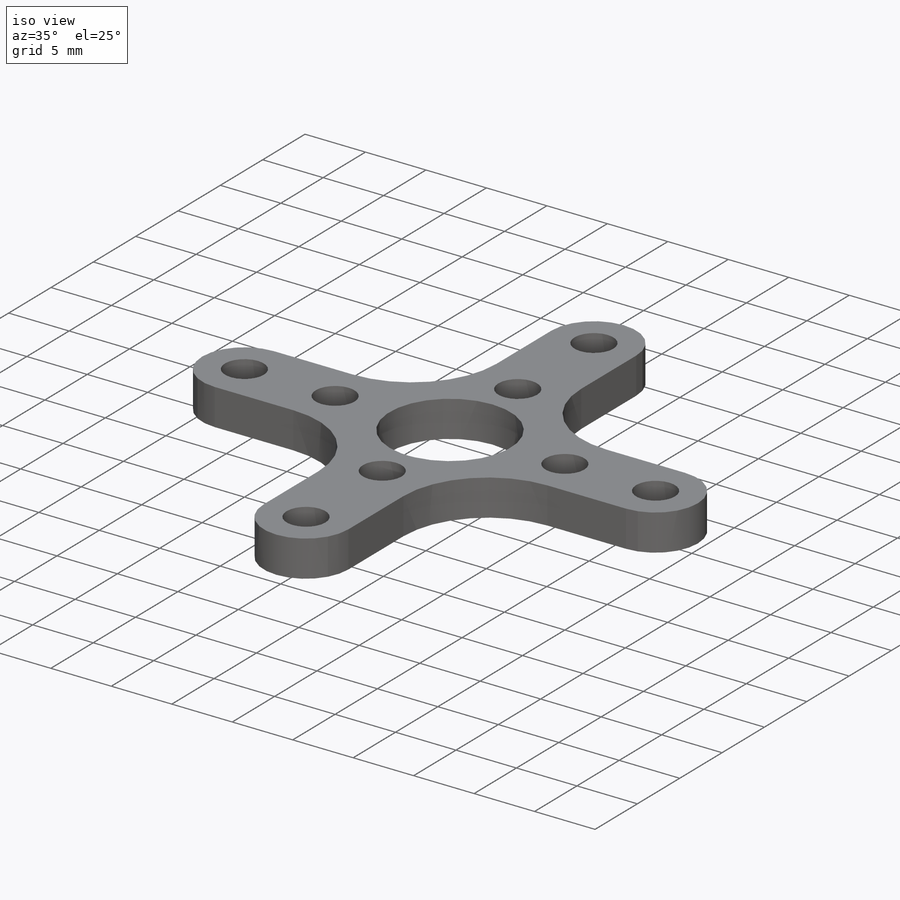
[diagram: iso view]
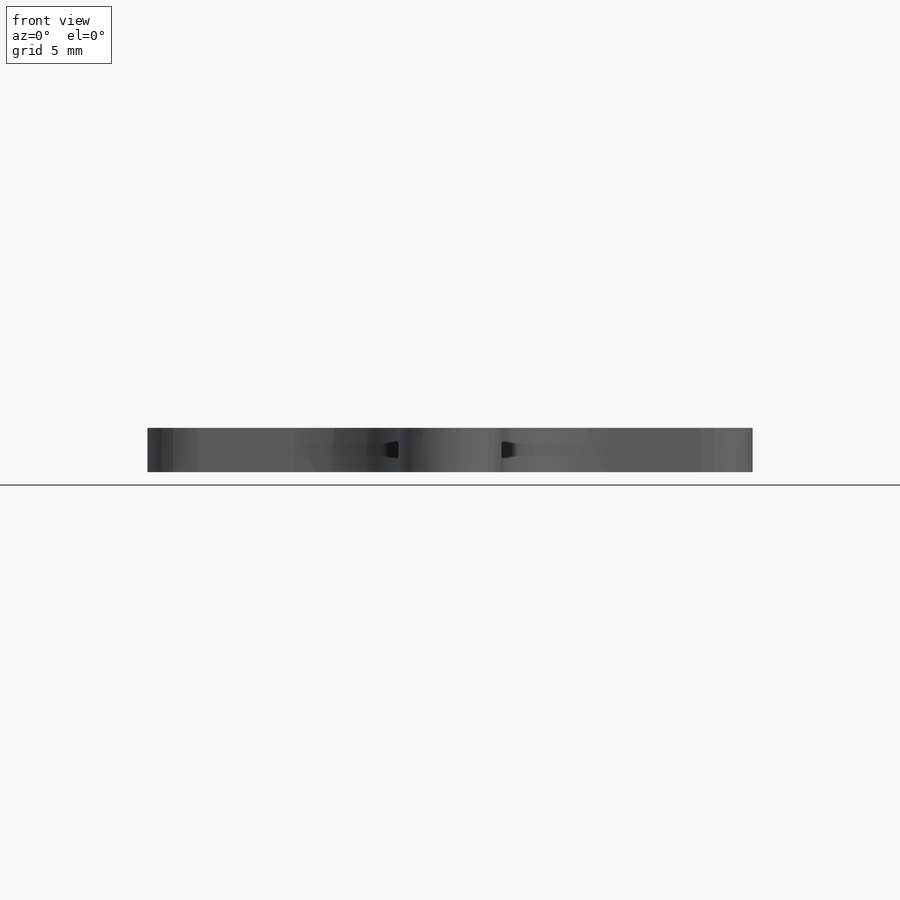
[diagram: front view]
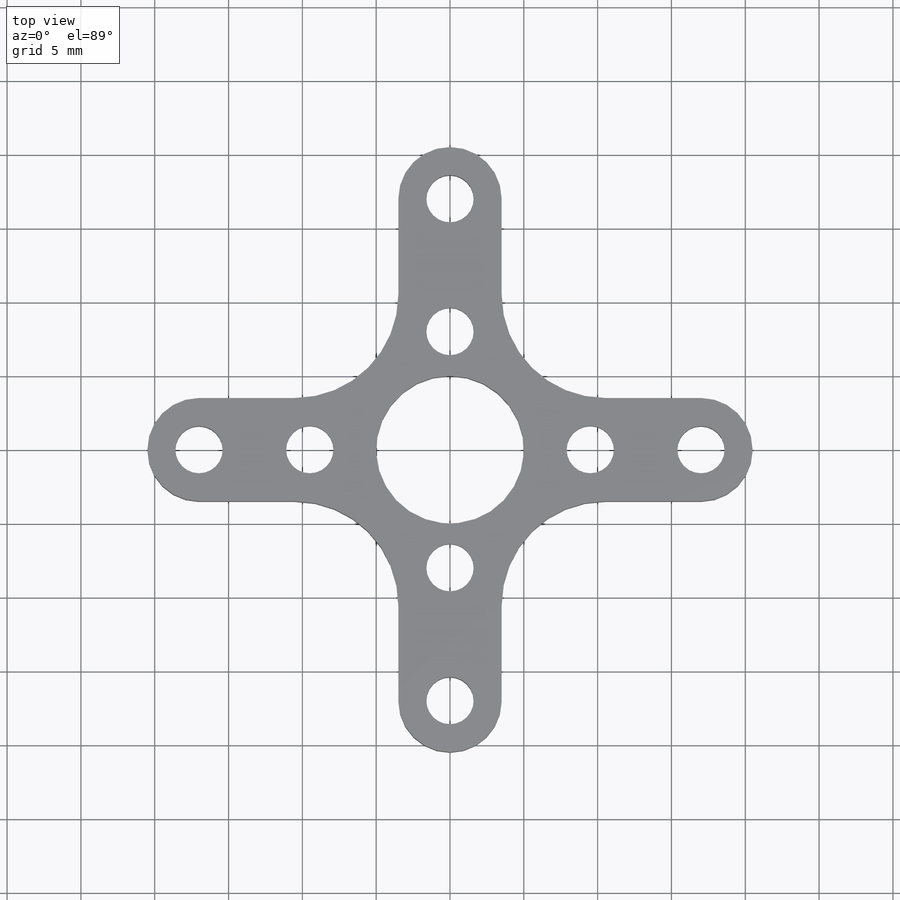
[diagram: top view]
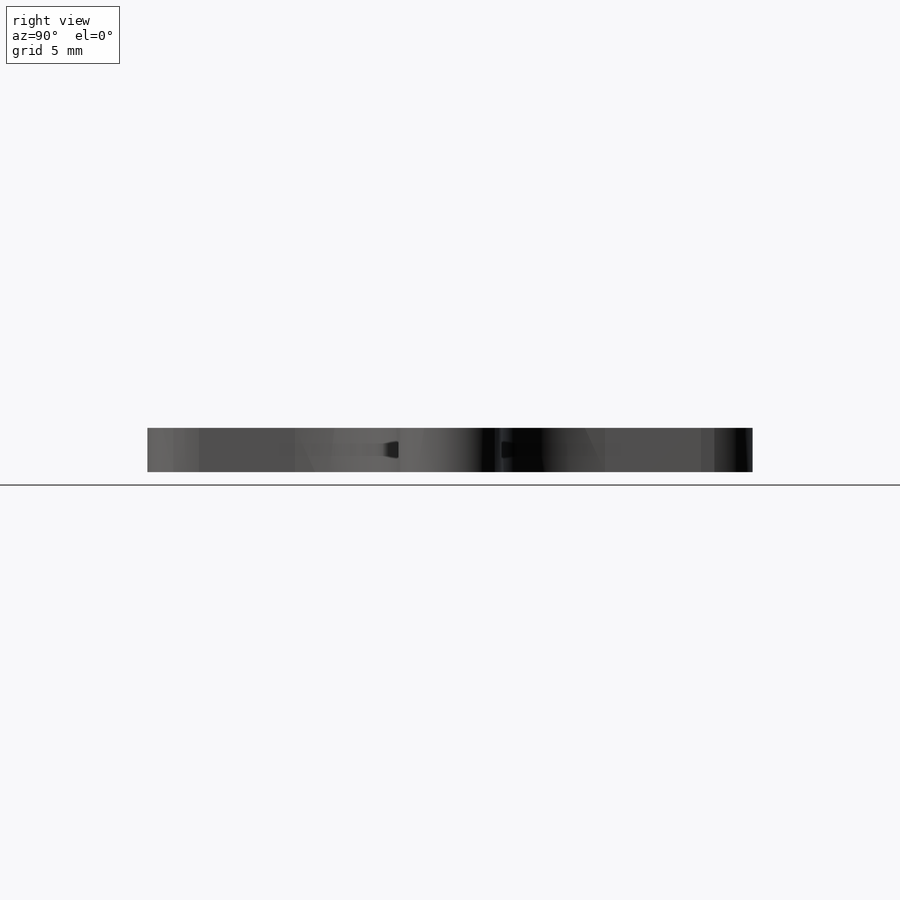
[diagram: right view]
SOLIDWORKS PART (.sldprt)
format: sldprt  version: not decoded by parser v0  size: 269,824 bytes
history: native  units: mm
features: sketch x8, hole x3, material x1, extrude x1, pattern_circular x1 (+12 scaffold rows collapsed)
feature tree (26):
  scaffold x12  (default folders/planes/origin — collapsed)
  material  "Material <not specified>"
  sketch  "Sketch1"  dims[c1.D1=34.0mm c1.D3=3.2mm c1.D6=3.2mm c1.D7=3.2mm c1.D10=7.0mm c1.D11=7.0mm c1.D12=7.0mm c1.D13=7.0mm c1.D14=5.7mm c1.D2=41.0mm c1.D5=16.0mm c1.D8=19.0mm c1.D9=7.0mm c2.D10=~15.141829mm c3.D10=90.0deg c4.D10=~15.141829mm c4.D15=4.0]
  extrude  "Boss-Extrude1"  Depth=3mm
  sketch  "Sketch2"  dims[D1=34.0mm]
  hole  "Ø10.0 (10) Diameter Hole1"  Diameter=10mm Depth=10mm
  sketch  "3DSketch4"
  sketch  "Sketch5"  dims[hole-wizard template sketch: 47 standard entries collapsed; hole parameters kept: c15.Hole Depth=10.0mm c15.D3=~14.816244mm c15.Drill Angle=118.0deg]
  hole  "Ø3.2 (3.2) Diameter Hole3"  Diameter=3.2mm Depth=10mm
  sketch  "3DSketch7"
  sketch  "Sketch8"  dims[hole-wizard template sketch: 50 standard entries collapsed; hole parameters above]
  pattern_circular  "CirPattern1"  Count=4 Angle=90deg
  hole  "CSK for M3 Flat Head Machine Screw1"  Diameter=3.2mm Depth=3mm
  sketch  "3DSketch8"  dims[D1=16.0mm D2=8.0mm D3=19.0mm D4=9.5mm]
  sketch  "Sketch9"  dims[hole-wizard template sketch: 54 standard entries collapsed; hole parameters kept: c17.Thru Hole Dia.=3.2mm c17.Thru Hole Depth=3.0mm c17.Near C'Sink Dia.=5.7mm c17.D4=~3.666174mm c17.Near C'Sink Angle=90.0deg]
decode coverage: 11 of 13 modeling features carry decoded parameters
note: ~ marks probable driven/reference dimensions
note: suppression state not decoded; provenance and decode notes live in map.json
